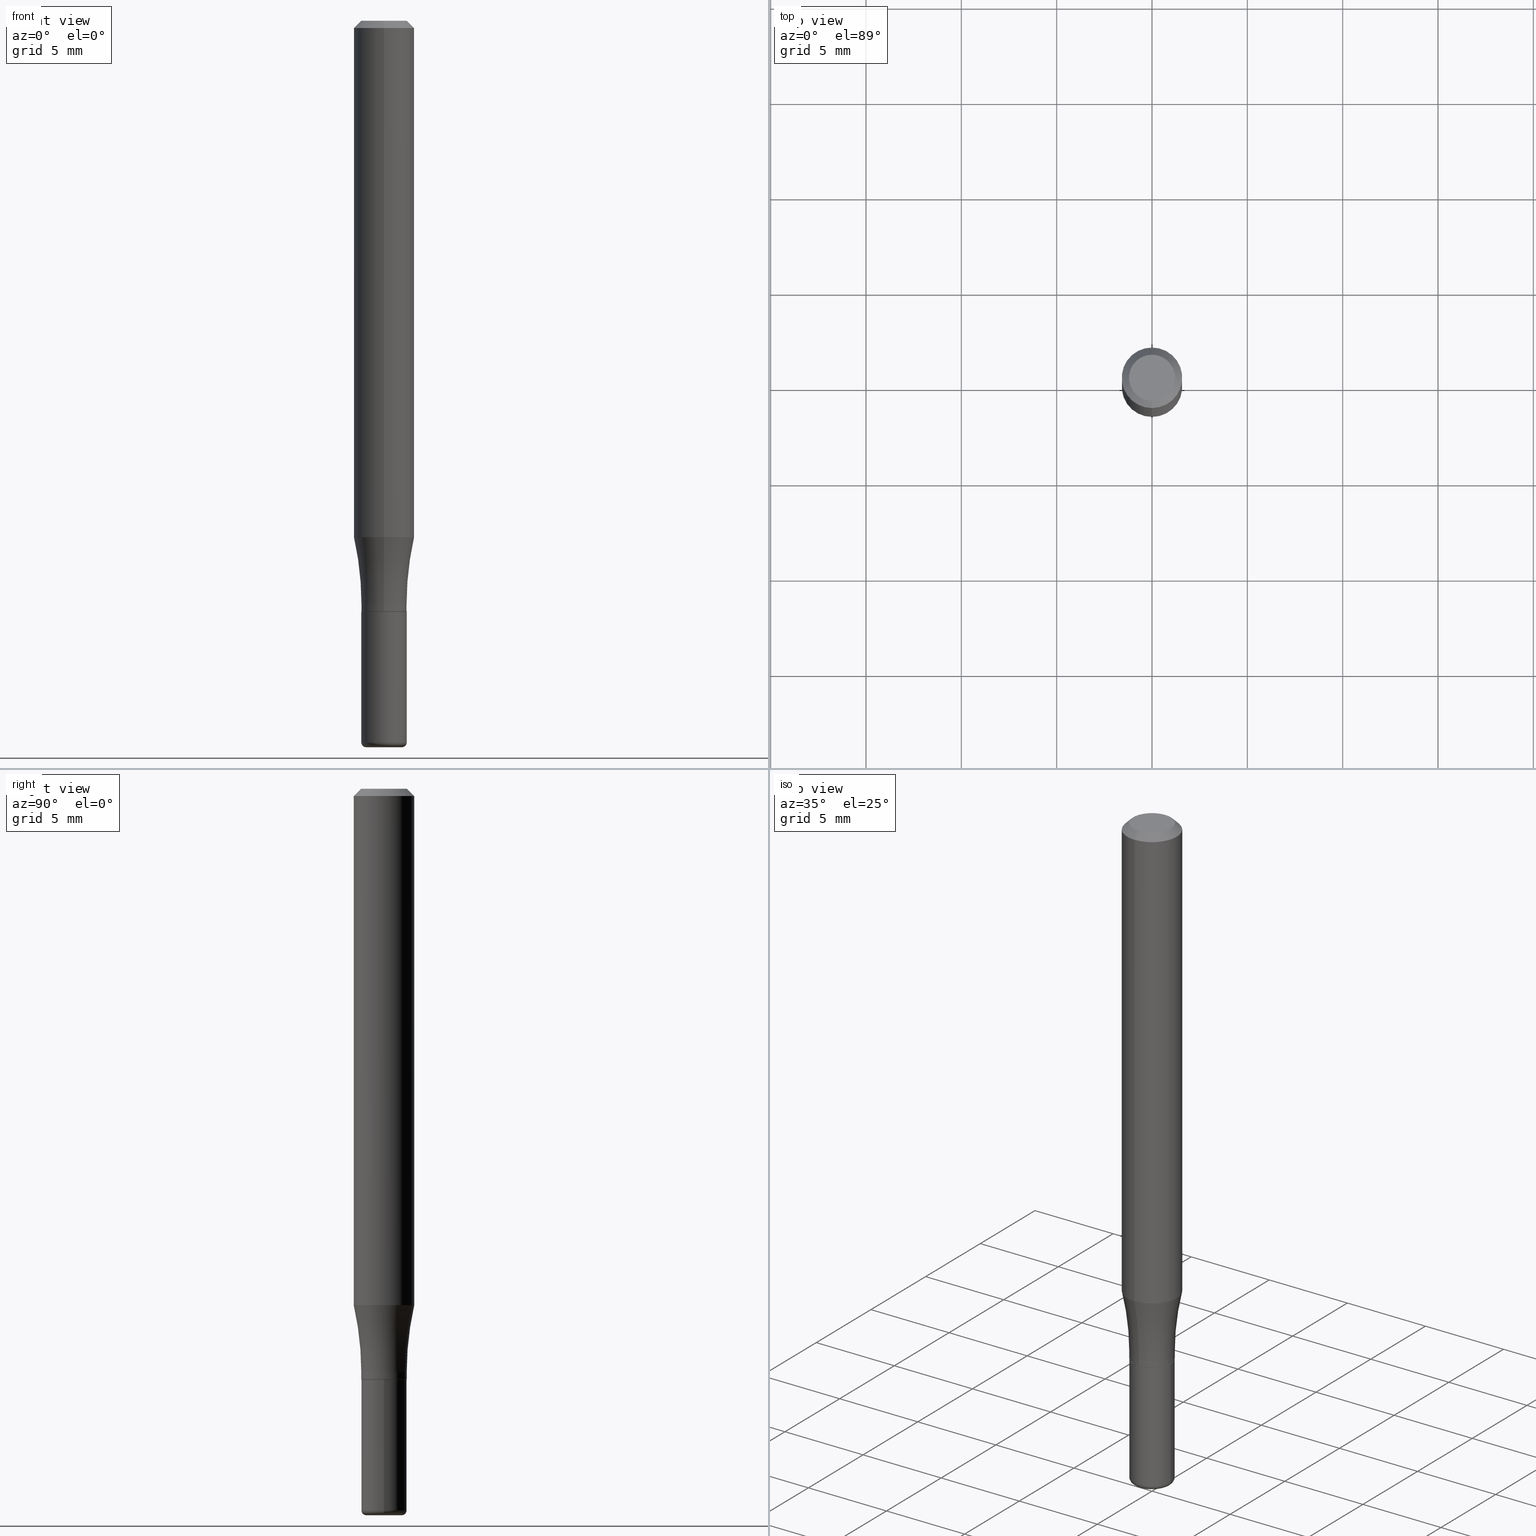
[diagram: canonical four-view strip — front | top / right | iso, engineering-drawing reading convention]
A machine part, canonical four-view strip (front | top / right | iso — engineering-drawing reading convention). The complete STEP part file that produces these views, byte-faithful:
ISO-10303-21;
HEADER;
FILE_DESCRIPTION (( 'STEP AP203' ),
    '1' );
FILE_NAME ('36873.STEP',
    '2024-02-29T19:32:56',
    ( '' ),
    ( '' ),
    'SwSTEP 2.0',
    'SolidWorks 2023',
    '' );
FILE_SCHEMA (( 'CONFIG_CONTROL_DESIGN' ));
ENDSEC;

DATA;
#1 = EDGE_CURVE ( 'NONE', #261, #139, #33, .T. ) ;
#2 = DIRECTION ( 'NONE',  ( -2.446042075129880699E-29, 3.490660385085830172E-15, 1.000000000000000000 ) ) ;
#3 = VERTEX_POINT ( 'NONE', #97 ) ;
#4 = DIRECTION ( 'NONE',  ( 1.000000000000000000, -6.982962677686261189E-15, 0.000000000000000000 ) ) ;
#5 = CIRCLE ( 'NONE', #297, 0.06250000000000001388 ) ;
#6 = FACE_OUTER_BOUND ( 'NONE', #220, .T. ) ;
#7 = ADVANCED_FACE ( 'NONE', ( #64 ), #455, .F. ) ;
#8 = ORIENTED_EDGE ( 'NONE', *, *, #156, .F. ) ;
#9 = DIRECTION ( 'NONE',  ( -2.445468806185136597E-29, 3.491481338843145583E-15, 1.000000000000000000 ) ) ;
#10 = VECTOR ( 'NONE', #333, 39.37007874015748143 ) ;
#11 = CARTESIAN_POINT ( 'NONE',  ( -0.04689999999999999725, -4.397712671060976636E-15, -1.220000000000000195 ) ) ;
#12 = CIRCLE ( 'NONE', #417, 0.04689999999999999725 ) ;
#13 = VECTOR ( 'NONE', #118, 39.37007874015748143 ) ;
#14 = EDGE_CURVE ( 'NONE', #248, #496, #503, .T. ) ;
#15 = PLANE ( 'NONE',  #136 ) ;
#16 = DATE_AND_TIME ( #93, #259 ) ;
#17 = ORIENTED_EDGE ( 'NONE', *, *, #255, .T. ) ;
#18 = CARTESIAN_POINT ( 'NONE',  ( 2.946789911453088792E-29, -4.207235013305989262E-15, -1.204999999999999627 ) ) ;
#19 = EDGE_LOOP ( 'NONE', ( #124, #390, #461, #276 ) ) ;
#20 = APPROVAL_PERSON_ORGANIZATION ( #144, #61, #465 ) ;
#21 = CALENDAR_DATE ( 2024, 29, 2 ) ;
#22 = ORIENTED_EDGE ( 'NONE', *, *, #109, .F. ) ;
#23 = DIRECTION ( 'NONE',  ( -2.446042075129880699E-29, 3.490660385085830172E-15, 1.000000000000000000 ) ) ;
#24 = ORIENTED_EDGE ( 'NONE', *, *, #402, .T. ) ;
#25 = CIRCLE ( 'NONE', #358, 0.04689999999999984459 ) ;
#26 = SECURITY_CLASSIFICATION_LEVEL ( 'unclassified' ) ;
#27 = AXIS2_PLACEMENT_3D ( 'NONE', #38, #312, #70 ) ;
#28 = DIRECTION ( 'NONE',  ( -6.982962677686265133E-15, -1.000000000000000000, 3.490660385085830567E-15 ) ) ;
#29 = EDGE_LOOP ( 'NONE', ( #507, #383, #22, #257 ) ) ;
#30 = EDGE_CURVE ( 'NONE', #299, #377, #25, .T. ) ;
#31 = DIRECTION ( 'NONE',  ( -2.446042075129880699E-29, 3.490660385085830172E-15, 1.000000000000000000 ) ) ;
#32 = EDGE_LOOP ( 'NONE', ( #42, #137, #511, #424 ) ) ;
#33 = LINE ( 'NONE', #222, #235 ) ;
#34 = DIRECTION ( 'NONE',  ( -2.446042075129880699E-29, 3.490660385085830172E-15, 1.000000000000000000 ) ) ;
#35 = ORIENTED_EDGE ( 'NONE', *, *, #370, .T. ) ;
#36 = AXIS2_PLACEMENT_3D ( 'NONE', #445, #364, #197 ) ;
#37 = CYLINDRICAL_SURFACE ( 'NONE', #385, 0.04689999999999990704 ) ;
#38 = CARTESIAN_POINT ( 'NONE',  ( 2.982948310620889037E-29, -4.256860339612169404E-15, -1.219500000000000028 ) ) ;
#39 = ADVANCED_FACE ( 'NONE', ( #506 ), #425, .T. ) ;
#40 = CC_DESIGN_SECURITY_CLASSIFICATION ( #110, ( #212 ) ) ;
#41 = FACE_OUTER_BOUND ( 'NONE', #19, .T. ) ;
#42 = ORIENTED_EDGE ( 'NONE', *, *, #156, .T. ) ;
#43 = PLANE ( 'NONE',  #51 ) ;
#44 = DIRECTION ( 'NONE',  ( -6.982962677686268288E-15, -1.000000000000000000, 0.000000000000000000 ) ) ;
#45 = DIRECTION ( 'NONE',  ( -2.446042075129880699E-29, 3.490660385085830172E-15, 1.000000000000000000 ) ) ;
#46 = AXIS2_PLACEMENT_3D ( 'NONE', #415, #129, #413 ) ;
#47 = FACE_OUTER_BOUND ( 'NONE', #79, .T. ) ;
#48 = DIRECTION ( 'NONE',  ( 1.000000000000000000, -6.982962677686265922E-15, 4.876176775795935793E-29 ) ) ;
#49 = FACE_OUTER_BOUND ( 'NONE', #419, .T. ) ;
#50 = VECTOR ( 'NONE', #54, 39.37007874015748143 ) ;
#51 = AXIS2_PLACEMENT_3D ( 'NONE', #72, #108, #231 ) ;
#52 = CALENDAR_DATE ( 2024, 29, 2 ) ;
#53 = EDGE_CURVE ( 'NONE', #65, #439, #183, .T. ) ;
#54 = DIRECTION ( 'NONE',  ( -2.446042075129880419E-29, 3.490660385085830172E-15, 1.000000000000000000 ) ) ;
#55 = ORIENTED_EDGE ( 'NONE', *, *, #342, .F. ) ;
#56 = DATE_AND_TIME ( #52, #489 ) ;
#57 = CARTESIAN_POINT ( 'NONE',  ( 2.984171331658454391E-29, -4.258605669804712731E-15, -1.220000000000000195 ) ) ;
#58 = ORIENTED_EDGE ( 'NONE', *, *, #30, .F. ) ;
#59 = PERSON_AND_ORGANIZATION_ROLE ( 'design_supplier' ) ;
#60 = CARTESIAN_POINT ( 'NONE',  ( 3.332445430715158596E-16, 0.04689999999999564656, -1.219500000000000028 ) ) ;
#61 = APPROVAL ( #99, 'UNSPECIFIED' ) ;
#62 = VERTEX_POINT ( 'NONE', #60 ) ;
#63 = CIRCLE ( 'NONE', #509, 0.04750000000000000749 ) ;
#64 = FACE_OUTER_BOUND ( 'NONE', #519, .T. ) ;
#65 = VERTEX_POINT ( 'NONE', #430 ) ;
#66 = PERSON_AND_ORGANIZATION ( #172, #513 ) ;
#67 = DIRECTION ( 'NONE',  ( -2.446042075129880138E-29, 3.490660385085830172E-15, 1.000000000000000000 ) ) ;
#68 = ORIENTED_EDGE ( 'NONE', *, *, #402, .F. ) ;
#69 = LOCAL_TIME ( 14, 32, 56.00000000000000000, #254 ) ;
#70 = DIRECTION ( 'NONE',  ( -6.982962677686265922E-15, -1.000000000000000000, 2.912417903693250021E-15 ) ) ;
#71 = CC_DESIGN_PERSON_AND_ORGANIZATION_ASSIGNMENT ( #200, #365, ( #295 ) ) ;
#72 = CARTESIAN_POINT ( 'NONE',  ( 3.275009495835157312E-16, 0.04689999999999574370, -1.220000000000000195 ) ) ;
#73 = DIRECTION ( 'NONE',  ( -2.446042075129880699E-29, 3.490660385085830172E-15, 1.000000000000000000 ) ) ;
#74 = ADVANCED_FACE ( 'NONE', ( #260 ), #346, .F. ) ;
#75 = ORIENTED_EDGE ( 'NONE', *, *, #432, .T. ) ;
#76 = LOCAL_TIME ( 14, 32, 56.00000000000000000, #494 ) ;
#77 = DIRECTION ( 'NONE',  ( -4.937700262163704750E-15, -0.7071067811864243380, 0.7071067811866706965 ) ) ;
#78 = PRODUCT_DEFINITION ( 'UNKNOWN', '', #212, #392 ) ;
#79 = EDGE_LOOP ( 'NONE', ( #431, #149, #58, #367 ) ) ;
#80 = AXIS2_PLACEMENT_3D ( 'NONE', #447, #121, #281 ) ;
#81 = DIRECTION ( 'NONE',  ( -1.000000000000000000, 6.982962677686265922E-15, -4.883557194083112901E-29 ) ) ;
#82 = AXIS2_PLACEMENT_3D ( 'NONE', #319, #440, #406 ) ;
#83 = DIRECTION ( 'NONE',  ( -1.000000000000000000, 7.105427357600962416E-15, 0.000000000000000000 ) ) ;
#84 = DIRECTION ( 'NONE',  ( -6.982962677686266711E-15, -1.000000000000000000, 3.490660385085830172E-15 ) ) ;
#85 = FACE_OUTER_BOUND ( 'NONE', #187, .T. ) ;
#86 = ORIENTED_EDGE ( 'NONE', *, *, #130, .T. ) ;
#87 = ADVANCED_FACE ( 'NONE', ( #210 ), #193, .F. ) ;
#88 = AXIS2_PLACEMENT_3D ( 'NONE', #57, #67, #219 ) ;
#89 = DIRECTION ( 'NONE',  ( 1.000000000000000000, -6.982962677686256455E-15, 0.000000000000000000 ) ) ;
#90 = CONICAL_SURFACE ( 'NONE', #82, 0.04639999999999990660, 0.7853981633972775267 ) ;
#91 = EDGE_CURVE ( 'NONE', #62, #377, #393, .T. ) ;
#92 = DIRECTION ( 'NONE',  ( 0.000000000000000000, 0.000000000000000000, 1.000000000000000000 ) ) ;
#93 = CALENDAR_DATE ( 2024, 29, 2 ) ;
#94 = ORIENTED_EDGE ( 'NONE', *, *, #334, .F. ) ;
#95 = DIRECTION ( 'NONE',  ( -6.982962677686265133E-15, -1.000000000000000000, 2.943801717310634252E-15 ) ) ;
#96 = ORIENTED_EDGE ( 'NONE', *, *, #482, .T. ) ;
#97 = CARTESIAN_POINT ( 'NONE',  ( -3.275009495834553834E-16, -0.04690000000000416752, -1.219499999999999806 ) ) ;
#98 = ORIENTED_EDGE ( 'NONE', *, *, #485, .F. ) ;
#99 = APPROVAL_STATUS ( 'not_yet_approved' ) ;
#100 = CC_DESIGN_PERSON_AND_ORGANIZATION_ASSIGNMENT ( #391, #499, ( #78 ) ) ;
#101 = CARTESIAN_POINT ( 'NONE',  ( 2.984171331658454391E-29, -4.258605669804712731E-15, -1.220000000000000195 ) ) ;
#102 = ORIENTED_EDGE ( 'NONE', *, *, #152, .F. ) ;
#103 = CARTESIAN_POINT ( 'NONE',  ( 3.296918293927156021E-16, 0.04639999999999564612, -1.220000000000000195 ) ) ;
#104 = EDGE_LOOP ( 'NONE', ( #113, #339, #338, #285 ) ) ;
#105 = AXIS2_PLACEMENT_3D ( 'NONE', #517, #116, #433 ) ;
#106 = CARTESIAN_POINT ( 'NONE',  ( -3.240094682446122283E-16, -0.04640000000000416708, -1.219999999999999973 ) ) ;
#107 = ORIENTED_EDGE ( 'NONE', *, *, #123, .F. ) ;
#108 = DIRECTION ( 'NONE',  ( 2.438088387897960049E-29, -3.491481338843145188E-15, -1.000000000000000000 ) ) ;
#109 = EDGE_CURVE ( 'NONE', #139, #439, #12, .T. ) ;
#110 = SECURITY_CLASSIFICATION ( '', '', #26 ) ;
#111 = CARTESIAN_POINT ( 'NONE',  ( 3.669063112694748373E-31, -5.235990577628641967E-17, -0.01499999999999970281 ) ) ;
#112 = CIRCLE ( 'NONE', #438, 0.04689999999999999725 ) ;
#113 = ORIENTED_EDGE ( 'NONE', *, *, #115, .F. ) ;
#114 = CARTESIAN_POINT ( 'NONE',  ( -3.275009495834850642E-16, -0.04689999999999987929, 1.637119720605250144E-16 ) ) ;
#115 = EDGE_CURVE ( 'NONE', #459, #62, #306, .T. ) ;
#116 = DIRECTION ( 'NONE',  ( -2.446042075129880699E-29, 3.490660385085830172E-15, 1.000000000000000000 ) ) ;
#117 = ORIENTED_EDGE ( 'NONE', *, *, #223, .F. ) ;
#118 = DIRECTION ( 'NONE',  ( -2.446042075129880419E-29, 3.490660385085830172E-15, 1.000000000000000000 ) ) ;
#119 = CARTESIAN_POINT ( 'NONE',  ( 3.668203209277704335E-29, -5.237222008264717388E-15, -1.499999999999999778 ) ) ;
#120 = MECHANICAL_CONTEXT ( 'NONE', #429, 'mechanical' ) ;
#121 = DIRECTION ( 'NONE',  ( -2.446042075129880699E-29, 3.490660385085830172E-15, 1.000000000000000000 ) ) ;
#122 = DIRECTION ( 'NONE',  ( 1.000000000000000000, -6.982962677686261189E-15, 0.000000000000000000 ) ) ;
#123 = EDGE_CURVE ( 'NONE', #474, #348, #63, .T. ) ;
#124 = ORIENTED_EDGE ( 'NONE', *, *, #53, .F. ) ;
#125 = CARTESIAN_POINT ( 'NONE',  ( 2.608047609598831020E-29, -3.721852770157700213E-15, -1.066231703908996797 ) ) ;
#126 = AXIS2_PLACEMENT_3D ( 'NONE', #127, #290, #203 ) ;
#127 = CARTESIAN_POINT ( 'NONE',  ( 2.946789911453088792E-29, -4.207235013305989262E-15, -1.204999999999999627 ) ) ;
#128 = EDGE_CURVE ( 'NONE', #348, #474, #359, .T. ) ;
#129 = DIRECTION ( 'NONE',  ( -2.445468806185136597E-29, 3.491481338843145583E-15, 1.000000000000000000 ) ) ;
#130 = EDGE_CURVE ( 'NONE', #377, #299, #426, .T. ) ;
#131 = CARTESIAN_POINT ( 'NONE',  ( 3.625444894818734906E-29, -5.298454348222084962E-15, -1.499999999999999778 ) ) ;
#132 = COORDINATED_UNIVERSAL_TIME_OFFSET ( 5, 0, .BEHIND. ) ;
#133 = APPROVAL_PERSON_ORGANIZATION ( #66, #294, #226 ) ;
#134 = DIRECTION ( 'NONE',  ( -2.446042075129880699E-29, 3.490660385085830172E-15, 1.000000000000000000 ) ) ;
#135 = PERSON_AND_ORGANIZATION ( #172, #513 ) ;
#136 = AXIS2_PLACEMENT_3D ( 'NONE', #131, #166, #48 ) ;
#137 = ORIENTED_EDGE ( 'NONE', *, *, #115, .T. ) ;
#138 = CARTESIAN_POINT ( 'NONE',  ( 2.947480700531505554E-29, -4.206245764028424746E-15, -1.204999999999999849 ) ) ;
#139 = VERTEX_POINT ( 'NONE', #301 ) ;
#140 = DIRECTION ( 'NONE',  ( -2.445468806185136877E-29, 3.491481338843145188E-15, 1.000000000000000000 ) ) ;
#141 = PERSON_AND_ORGANIZATION ( #172, #513 ) ;
#142 = DIRECTION ( 'NONE',  ( 1.000000000000000000, -6.982962677686263555E-15, 0.000000000000000000 ) ) ;
#143 = ORIENTED_EDGE ( 'NONE', *, *, #255, .F. ) ;
#144 = PERSON_AND_ORGANIZATION ( #172, #513 ) ;
#145 = CARTESIAN_POINT ( 'NONE',  ( 3.316907271900976589E-16, 0.04750000000000000749, -2.923346626010003347E-17 ) ) ;
#146 = VERTEX_POINT ( 'NONE', #106 ) ;
#147 = APPLICATION_PROTOCOL_DEFINITION ( 'international standard', 'config_control_design', 1994, #395 ) ;
#148 = DIRECTION ( 'NONE',  ( -2.445468806185136877E-29, 3.491481338843145188E-15, 1.000000000000000000 ) ) ;
#149 = ORIENTED_EDGE ( 'NONE', *, *, #91, .T. ) ;
#150 = AXIS2_PLACEMENT_3D ( 'NONE', #480, #354, #316 ) ;
#151 = DIRECTION ( 'NONE',  ( 2.446042075129880699E-29, -3.490660385085830172E-15, -1.000000000000000000 ) ) ;
#152 = EDGE_CURVE ( 'NONE', #158, #496, #318, .T. ) ;
#153 = ADVANCED_BREP_SHAPE_REPRESENTATION ( '36873', ( #300, #308, #381 ), #314 ) ;
#154 = LINE ( 'NONE', #477, #441 ) ;
#155 = DIRECTION ( 'NONE',  ( 6.982962677686265922E-15, 1.000000000000000000, -3.483106191921935554E-15 ) ) ;
#156 = EDGE_CURVE ( 'NONE', #146, #459, #331, .T. ) ;
#157 = DIRECTION ( 'NONE',  ( -2.445468806185136597E-29, 3.491481338843145583E-15, 1.000000000000000000 ) ) ;
#158 = VERTEX_POINT ( 'NONE', #420 ) ;
#159 = FACE_OUTER_BOUND ( 'NONE', #468, .T. ) ;
#160 = EDGE_CURVE ( 'NONE', #65, #261, #278, .T. ) ;
#161 = CARTESIAN_POINT ( 'NONE',  ( -0.03690000000000000224, -4.940116925380811614E-15, -1.490000000000000213 ) ) ;
#162 = FACE_OUTER_BOUND ( 'NONE', #293, .T. ) ;
#163 = DIRECTION ( 'NONE',  ( -6.982962677686265133E-15, -1.000000000000000000, 3.490660385085829778E-15 ) ) ;
#164 = ADVANCED_FACE ( 'NONE', ( #463 ), #518, .T. ) ;
#165 = DIRECTION ( 'NONE',  ( -6.982962677686265922E-15, -1.000000000000000000, 4.370956789862820361E-15 ) ) ;
#166 = DIRECTION ( 'NONE',  ( -2.438088387897960049E-29, 3.491481338843145188E-15, 1.000000000000000000 ) ) ;
#167 =( CONVERSION_BASED_UNIT ( 'INCH', #170 ) LENGTH_UNIT ( ) NAMED_UNIT ( #373 ) );
#168 = CC_DESIGN_PERSON_AND_ORGANIZATION_ASSIGNMENT ( #135, #173, ( #110 ) ) ;
#169 = AXIS2_PLACEMENT_3D ( 'NONE', #161, #327, #83 ) ;
#170 = LENGTH_MEASURE_WITH_UNIT ( LENGTH_MEASURE( 0.02539999999999999897 ), #408 );
#171 = ORIENTED_EDGE ( 'NONE', *, *, #130, .F. ) ;
#172 = PERSON ( 'UNSPECIFIED', 'UNSPECIFIED', 'UNSPECIFIED', ('UNSPECIFIED'), ('UNSPECIFIED'), ('UNSPECIFIED') ) ;
#173 = PERSON_AND_ORGANIZATION_ROLE ( 'classification_officer' ) ;
#174 = ORIENTED_EDGE ( 'NONE', *, *, #370, .F. ) ;
#175 = DATE_TIME_ROLE ( 'creation_date' ) ;
#176 = DIRECTION ( 'NONE',  ( -6.982962677686265922E-15, -1.000000000000000000, 3.483106191921935554E-15 ) ) ;
#177 = ORIENTED_EDGE ( 'NONE', *, *, #304, .T. ) ;
#178 = ADVANCED_FACE ( 'NONE', ( #361 ), #43, .F. ) ;
#179 = CONICAL_SURFACE ( 'NONE', #236, 0.06250000000000000000, 0.7853981633974488341 ) ;
#180 = SHAPE_DEFINITION_REPRESENTATION ( #209, #153 ) ;
#181 = DIRECTION ( 'NONE',  ( -2.446042075129880419E-29, 3.490660385085830172E-15, 1.000000000000000000 ) ) ;
#182 = ORIENTED_EDGE ( 'NONE', *, *, #152, .T. ) ;
#183 = LINE ( 'NONE', #185, #206 ) ;
#184 = EDGE_LOOP ( 'NONE', ( #24, #192, #94, #412 ) ) ;
#185 = CARTESIAN_POINT ( 'NONE',  ( -0.04689999999999990704, 3.332445430714863267E-16, -2.306980557329546398E-30 ) ) ;
#186 = AXIS2_PLACEMENT_3D ( 'NONE', #111, #73, #238 ) ;
#187 = EDGE_LOOP ( 'NONE', ( #35, #237, #98, #217 ) ) ;
#188 = DIRECTION ( 'NONE',  ( -6.982962677686265133E-15, -1.000000000000000000, 3.490660385085829778E-15 ) ) ;
#189 = CARTESIAN_POINT ( 'NONE',  ( -4.364351673553649961E-16, -0.06250000000000369149, -1.066231703908996575 ) ) ;
#190 = ADVANCED_FACE ( 'NONE', ( #274 ), #404, .T. ) ;
#191 = CARTESIAN_POINT ( 'NONE',  ( 0.000000000000000000, 0.000000000000000000, 0.000000000000000000 ) ) ;
#192 = ORIENTED_EDGE ( 'NONE', *, *, #223, .T. ) ;
#193 = TOROIDAL_SURFACE ( 'NONE', #492, 0.6718999999999998307, 0.6250000000000000000 ) ;
#194 = AXIS2_PLACEMENT_3D ( 'NONE', #350, #520, #512 ) ;
#195 = DIRECTION ( 'NONE',  ( -2.445468806185136597E-29, 3.491481338843145583E-15, 1.000000000000000000 ) ) ;
#196 = EDGE_LOOP ( 'NONE', ( #143, #68, #177, #421 ) ) ;
#197 = DIRECTION ( 'NONE',  ( 6.982962677686265922E-15, 1.000000000000000000, -3.483106191921935554E-15 ) ) ;
#198 = ADVANCED_FACE ( 'NONE', ( #159 ), #179, .T. ) ;
#199 = DIRECTION ( 'NONE',  ( -6.982962677686265922E-15, -1.000000000000000000, 4.370956789862820361E-15 ) ) ;
#200 = PERSON_AND_ORGANIZATION ( #172, #513 ) ;
#201 = ORIENTED_EDGE ( 'NONE', *, *, #473, .T. ) ;
#202 = CYLINDRICAL_SURFACE ( 'NONE', #469, 0.06250000000000001388 ) ;
#203 = DIRECTION ( 'NONE',  ( -6.982962677686265133E-15, -1.000000000000000000, 3.490660385085830567E-15 ) ) ;
#204 = EDGE_CURVE ( 'NONE', #62, #3, #289, .T. ) ;
#205 = CARTESIAN_POINT ( 'NONE',  ( 3.314681862321158048E-16, 0.04639999999999564612, -1.220000000000000195 ) ) ;
#206 = VECTOR ( 'NONE', #148, 39.37007874015748143 ) ;
#207 = AXIS2_PLACEMENT_3D ( 'NONE', #138, #134, #382 ) ;
#208 = COORDINATED_UNIVERSAL_TIME_OFFSET ( 5, 0, .BEHIND. ) ;
#209 = PRODUCT_DEFINITION_SHAPE ( 'NONE', 'NONE',  #78 ) ;
#210 = FACE_OUTER_BOUND ( 'NONE', #196, .T. ) ;
#211 = ORIENTED_EDGE ( 'NONE', *, *, #273, .F. ) ;
#212 = PRODUCT_DEFINITION_FORMATION_WITH_SPECIFIED_SOURCE ( 'ANY', '', #295, .NOT_KNOWN. ) ;
#213 = APPROVAL_DATE_TIME ( #458, #360 ) ;
#214 = ADVANCED_FACE ( 'NONE', ( #41 ), #37, .T. ) ;
#215 = CIRCLE ( 'NONE', #46, 0.04689999999999980990 ) ;
#216 = CARTESIAN_POINT ( 'NONE',  ( -4.364351673553916694E-16, -0.06250000000000001388, 2.181662740678644104E-16 ) ) ;
#217 = ORIENTED_EDGE ( 'NONE', *, *, #374, .F. ) ;
#218 = VECTOR ( 'NONE', #232, 39.37007874015748143 ) ;
#219 = DIRECTION ( 'NONE',  ( -6.982962677686265922E-15, -1.000000000000000000, 3.490660385085830172E-15 ) ) ;
#220 = EDGE_LOOP ( 'NONE', ( #107, #96, #456, #344 ) ) ;
#221 = CIRCLE ( 'NONE', #194, 0.04639999999999990660 ) ;
#222 = CARTESIAN_POINT ( 'NONE',  ( 0.04689999999999990704, -3.275009495834852122E-16, 2.286926907848289134E-30 ) ) ;
#223 = EDGE_CURVE ( 'NONE', #225, #158, #510, .T. ) ;
#224 = CARTESIAN_POINT ( 'NONE',  ( -6.681261293831673262E-45, 9.534592375949691009E-31, 2.731458040629538191E-16 ) ) ;
#225 = VERTEX_POINT ( 'NONE', #514 ) ;
#226 = APPROVAL_ROLE ( '' ) ;
#227 = DIRECTION ( 'NONE',  ( 2.446042075129880138E-29, -3.490660385085830172E-15, -1.000000000000000000 ) ) ;
#228 = ORIENTED_EDGE ( 'NONE', *, *, #14, .T. ) ;
#229 = CARTESIAN_POINT ( 'NONE',  ( -3.275009495834553341E-16, -0.04690000000000405650, -1.204999999999999627 ) ) ;
#230 = AXIS2_PLACEMENT_3D ( 'NONE', #242, #286, #323 ) ;
#231 = DIRECTION ( 'NONE',  ( -1.000000000000000000, 6.982962677686265922E-15, -4.876176775795935793E-29 ) ) ;
#232 = DIRECTION ( 'NONE',  ( 4.937700262164550409E-15, 0.7071067811865454633, -0.7071067811865495711 ) ) ;
#233 = ORIENTED_EDGE ( 'NONE', *, *, #109, .T. ) ;
#234 = DIRECTION ( 'NONE',  ( -2.446042075129880699E-29, 3.490660385085830172E-15, 1.000000000000000000 ) ) ;
#235 = VECTOR ( 'NONE', #140, 39.37007874015748143 ) ;
#236 = AXIS2_PLACEMENT_3D ( 'NONE', #270, #151, #155 ) ;
#237 = ORIENTED_EDGE ( 'NONE', *, *, #342, .T. ) ;
#238 = DIRECTION ( 'NONE',  ( -6.982962677686265922E-15, -1.000000000000000000, 3.483106191921935554E-15 ) ) ;
#239 = ADVANCED_FACE ( 'NONE', ( #322 ), #400, .T. ) ;
#240 = CARTESIAN_POINT ( 'NONE',  ( 3.840629472727447874E-16, 0.04750000000000000749, 1.073394357713768638E-16 ) ) ;
#241 = CARTESIAN_POINT ( 'NONE',  ( -4.287811248607203282E-16, -0.06250000000000005551, -0.01499999999999948597 ) ) ;
#242 = CARTESIAN_POINT ( 'NONE',  ( 0.03690000000000000224, -5.459978517682910710E-15, -1.490000000000000213 ) ) ;
#243 = CARTESIAN_POINT ( 'NONE',  ( -3.773273898774340269E-16, -0.04750000000000000749, 4.389521723545307622E-16 ) ) ;
#244 = AXIS2_PLACEMENT_3D ( 'NONE', #145, #227, #418 ) ;
#245 = AXIS2_PLACEMENT_3D ( 'NONE', #191, #272, #188 ) ;
#246 = EDGE_CURVE ( 'NONE', #3, #62, #311, .T. ) ;
#247 = CARTESIAN_POINT ( 'NONE',  ( -0.03690000000000000224, -4.922047195287021609E-15, -1.499999999999999778 ) ) ;
#248 = VERTEX_POINT ( 'NONE', #189 ) ;
#249 = ADVANCED_FACE ( 'NONE', ( #356 ), #90, .T. ) ;
#250 =( NAMED_UNIT ( * ) PLANE_ANGLE_UNIT ( ) SI_UNIT ( $, .RADIAN. ) );
#251 = DATE_AND_TIME ( #21, #69 ) ;
#252 = DIRECTION ( 'NONE',  ( 5.024295867787204109E-15, 0.7071067811864292230, 0.7071067811866658115 ) ) ;
#253 = ORIENTED_EDGE ( 'NONE', *, *, #315, .T. ) ;
#254 = COORDINATED_UNIVERSAL_TIME_OFFSET ( 5, 0, .BEHIND. ) ;
#255 = EDGE_CURVE ( 'NONE', #225, #377, #375, .T. ) ;
#256 = CARTESIAN_POINT ( 'NONE',  ( 2.984171331658454391E-29, -4.258605669804712731E-15, -1.220000000000000195 ) ) ;
#257 = ORIENTED_EDGE ( 'NONE', *, *, #1, .F. ) ;
#258 = APPROVAL_DATE_TIME ( #380, #294 ) ;
#259 = LOCAL_TIME ( 14, 32, 56.00000000000000000, #384 ) ;
#260 = FACE_OUTER_BOUND ( 'NONE', #428, .T. ) ;
#261 = VERTEX_POINT ( 'NONE', #352 ) ;
#262 = CARTESIAN_POINT ( 'NONE',  ( -6.681261293831673262E-45, 9.534592375949691009E-31, 2.731458040629538191E-16 ) ) ;
#263 = CC_DESIGN_PERSON_AND_ORGANIZATION_ASSIGNMENT ( #141, #296, ( #212 ) ) ;
#264 = VECTOR ( 'NONE', #181, 39.37007874015748143 ) ;
#265 = EDGE_LOOP ( 'NONE', ( #233, #341 ) ) ;
#266 = AXIS2_PLACEMENT_3D ( 'NONE', #224, #389, #472 ) ;
#267 = PERSON_AND_ORGANIZATION ( #172, #513 ) ;
#268 = CARTESIAN_POINT ( 'NONE',  ( 3.669063112694748373E-31, -5.235990577628641967E-17, -0.01499999999999970281 ) ) ;
#269 = ORIENTED_EDGE ( 'NONE', *, *, #473, .F. ) ;
#270 = CARTESIAN_POINT ( 'NONE',  ( 3.669063112694748373E-31, -5.235990577628641967E-17, -0.01499999999999970281 ) ) ;
#271 = ORIENTED_EDGE ( 'NONE', *, *, #128, .F. ) ;
#272 = DIRECTION ( 'NONE',  ( -2.446042075129880699E-29, 3.490660385085830172E-15, 1.000000000000000000 ) ) ;
#273 = EDGE_CURVE ( 'NONE', #459, #146, #221, .T. ) ;
#274 = FACE_OUTER_BOUND ( 'NONE', #29, .T. ) ;
#275 = DIRECTION ( 'NONE',  ( 1.000000000000000000, -6.982962677686265922E-15, 4.876176775795935232E-29 ) ) ;
#276 = ORIENTED_EDGE ( 'NONE', *, *, #462, .F. ) ;
#277 = LINE ( 'NONE', #481, #218 ) ;
#278 = CIRCLE ( 'NONE', #410, 0.04689999999999980990 ) ;
#279 = DIRECTION ( 'NONE',  ( -2.446042075129880699E-29, 3.490660385085830172E-15, 1.000000000000000000 ) ) ;
#280 = CARTESIAN_POINT ( 'NONE',  ( 0.000000000000000000, 0.000000000000000000, 0.000000000000000000 ) ) ;
#281 = DIRECTION ( 'NONE',  ( -6.982962677686266711E-15, -1.000000000000000000, 3.490660385085830172E-15 ) ) ;
#282 = CARTESIAN_POINT ( 'NONE',  ( 3.668203209277704335E-29, -5.237222008264717388E-15, -1.499999999999999778 ) ) ;
#283 = CC_DESIGN_APPROVAL ( #294, ( #110 ) ) ;
#284 = EDGE_CURVE ( 'NONE', #146, #3, #154, .T. ) ;
#285 = ORIENTED_EDGE ( 'NONE', *, *, #204, .F. ) ;
#286 = DIRECTION ( 'NONE',  ( -6.982962677686266711E-15, -1.000000000000000000, 3.491481338843145583E-15 ) ) ;
#287 = DIRECTION ( 'NONE',  ( 1.000000000000000000, -6.982962677686263555E-15, 4.883557194083112340E-29 ) ) ;
#288 = AXIS2_PLACEMENT_3D ( 'NONE', #313, #81, #44 ) ;
#289 = CIRCLE ( 'NONE', #105, 0.04689999999999990704 ) ;
#290 = DIRECTION ( 'NONE',  ( -2.446042075129880699E-29, 3.490660385085830172E-15, 1.000000000000000000 ) ) ;
#291 = APPROVAL_PERSON_ORGANIZATION ( #376, #360, #345 ) ;
#292 = DIRECTION ( 'NONE',  ( -2.446042075129880699E-29, 3.490660385085830172E-15, 1.000000000000000000 ) ) ;
#293 = EDGE_LOOP ( 'NONE', ( #464, #387, #302, #171 ) ) ;
#294 = APPROVAL ( #416, 'UNSPECIFIED' ) ;
#295 = PRODUCT ( '36873', '36873', '', ( #120 ) ) ;
#296 = PERSON_AND_ORGANIZATION_ROLE ( 'creator' ) ;
#297 = AXIS2_PLACEMENT_3D ( 'NONE', #125, #45, #199 ) ;
#298 = DIRECTION ( 'NONE',  ( -2.445468806185136597E-29, 3.491481338843145583E-15, 1.000000000000000000 ) ) ;
#299 = VERTEX_POINT ( 'NONE', #229 ) ;
#300 = MANIFOLD_SOLID_BREP ( 'Body-Move/Copy2[1]', #478 ) ;
#301 = CARTESIAN_POINT ( 'NONE',  ( 0.04689999999999999725, -4.587108182972123426E-15, -1.220000000000000195 ) ) ;
#302 = ORIENTED_EDGE ( 'NONE', *, *, #332, .T. ) ;
#303 = CALENDAR_DATE ( 2024, 29, 2 ) ;
#304 = EDGE_CURVE ( 'NONE', #248, #299, #484, .T. ) ;
#305 = AXIS2_PLACEMENT_3D ( 'NONE', #451, #9, #287 ) ;
#306 = LINE ( 'NONE', #103, #399 ) ;
#307 = ORIENTED_EDGE ( 'NONE', *, *, #482, .F. ) ;
#308 = MANIFOLD_SOLID_BREP ( 'Body-Move/Copy2[2]', #442 ) ;
#309 = DIRECTION ( 'NONE',  ( 1.000000000000000000, -6.982962677686256455E-15, 0.000000000000000000 ) ) ;
#310 = EDGE_LOOP ( 'NONE', ( #117, #75, #228, #102 ) ) ;
#311 = CIRCLE ( 'NONE', #27, 0.04689999999999990704 ) ;
#312 = DIRECTION ( 'NONE',  ( -2.446042075129880699E-29, 3.490660385085830172E-15, 1.000000000000000000 ) ) ;
#313 = CARTESIAN_POINT ( 'NONE',  ( -4.691852623137371831E-15, -0.6719000000000041606, -1.204999999999997407 ) ) ;
#314 =( GEOMETRIC_REPRESENTATION_CONTEXT ( 3 ) GLOBAL_UNCERTAINTY_ASSIGNED_CONTEXT ( ( #321 ) ) GLOBAL_UNIT_ASSIGNED_CONTEXT ( ( #167, #250, #411 ) ) REPRESENTATION_CONTEXT ( 'NONE', 'WORKASPACE' ) );
#315 = EDGE_CURVE ( 'NONE', #348, #158, #277, .T. ) ;
#316 = DIRECTION ( 'NONE',  ( 7.105427357601001859E-15, 1.000000000000000000, 0.000000000000000000 ) ) ;
#317 = AXIS2_PLACEMENT_3D ( 'NONE', #467, #298, #378 ) ;
#318 = CIRCLE ( 'NONE', #443, 0.06250000000000000000 ) ;
#319 = CARTESIAN_POINT ( 'NONE',  ( 2.984171331658454391E-29, -4.258605669804712731E-15, -1.220000000000000195 ) ) ;
#320 = ORIENTED_EDGE ( 'NONE', *, *, #432, .F. ) ;
#321 = UNCERTAINTY_MEASURE_WITH_UNIT (LENGTH_MEASURE( 1.000000000000000082E-05 ), #167, 'distance_accuracy_value', 'NONE');
#322 = FACE_OUTER_BOUND ( 'NONE', #184, .T. ) ;
#323 = DIRECTION ( 'NONE',  ( 1.000000000000000000, -6.982962677686269077E-15, 0.000000000000000000 ) ) ;
#324 = CIRCLE ( 'NONE', #186, 0.06250000000000000000 ) ;
#325 = CYLINDRICAL_SURFACE ( 'NONE', #80, 0.04689999999999987929 ) ;
#326 = FACE_OUTER_BOUND ( 'NONE', #444, .T. ) ;
#327 = DIRECTION ( 'NONE',  ( 7.105427357601001859E-15, 1.000000000000000000, -3.491481338843145583E-15 ) ) ;
#328 = CARTESIAN_POINT ( 'NONE',  ( 2.983471943545866670E-29, -4.259607233388637524E-15, -1.220000000000000195 ) ) ;
#329 = CC_DESIGN_DATE_AND_TIME_ASSIGNMENT ( #16, #175, ( #78 ) ) ;
#330 = CARTESIAN_POINT ( 'NONE',  ( 0.000000000000000000, 0.000000000000000000, 0.000000000000000000 ) ) ;
#331 = CIRCLE ( 'NONE', #471, 0.04639999999999990660 ) ;
#332 = EDGE_CURVE ( 'NONE', #3, #299, #475, .T. ) ;
#333 = DIRECTION ( 'NONE',  ( -4.851104656540966641E-15, -0.7071067811865503483, -0.7071067811865446862 ) ) ;
#334 = EDGE_CURVE ( 'NONE', #496, #158, #324, .T. ) ;
#335 = DIRECTION ( 'NONE',  ( 1.000000000000000000, 0.000000000000000000, 0.000000000000000000 ) ) ;
#336 = CC_DESIGN_APPROVAL ( #61, ( #212 ) ) ;
#337 = CARTESIAN_POINT ( 'NONE',  ( 3.332445430714860801E-16, 0.04689999999999987929, -1.637119720605250144E-16 ) ) ;
#338 = ORIENTED_EDGE ( 'NONE', *, *, #284, .T. ) ;
#339 = ORIENTED_EDGE ( 'NONE', *, *, #273, .T. ) ;
#340 = CARTESIAN_POINT ( 'NONE',  ( 3.643748521215853910E-29, -5.202307194876288105E-15, -1.490000000000000213 ) ) ;
#341 = ORIENTED_EDGE ( 'NONE', *, *, #462, .T. ) ;
#342 = EDGE_CURVE ( 'NONE', #501, #65, #405, .T. ) ;
#343 = CARTESIAN_POINT ( 'NONE',  ( 2.947480700531505554E-29, -4.206245764028424746E-15, -1.204999999999999849 ) ) ;
#344 = ORIENTED_EDGE ( 'NONE', *, *, #315, .F. ) ;
#345 = APPROVAL_ROLE ( '' ) ;
#346 = PLANE ( 'NONE',  #88 ) ;
#347 = ADVANCED_FACE ( 'NONE', ( #6 ), #516, .T. ) ;
#348 = VERTEX_POINT ( 'NONE', #240 ) ;
#349 = DATE_TIME_ROLE ( 'classification_date' ) ;
#350 = CARTESIAN_POINT ( 'NONE',  ( 2.984171331658454391E-29, -4.258605669804712731E-15, -1.220000000000000195 ) ) ;
#351 = ORIENTED_EDGE ( 'NONE', *, *, #160, .F. ) ;
#352 = CARTESIAN_POINT ( 'NONE',  ( 0.04689999999999980990, -5.529808144459772430E-15, -1.490000000000000213 ) ) ;
#353 = ADVANCED_FACE ( 'NONE', ( #47 ), #487, .T. ) ;
#354 = DIRECTION ( 'NONE',  ( 1.000000000000000000, -7.105427357601001070E-15, 4.926305454758171006E-29 ) ) ;
#355 = AXIS2_PLACEMENT_3D ( 'NONE', #282, #371, #122 ) ;
#356 = FACE_OUTER_BOUND ( 'NONE', #104, .T. ) ;
#357 = CIRCLE ( 'NONE', #470, 0.03690000000000000224 ) ;
#358 = AXIS2_PLACEMENT_3D ( 'NONE', #343, #31, #386 ) ;
#359 = CIRCLE ( 'NONE', #266, 0.04750000000000000749 ) ;
#360 = APPROVAL ( #388, 'UNSPECIFIED' ) ;
#361 = FACE_OUTER_BOUND ( 'NONE', #265, .T. ) ;
#362 = CARTESIAN_POINT ( 'NONE',  ( 2.608047609598831020E-29, -3.721852770157700213E-15, -1.066231703908996797 ) ) ;
#363 = TOROIDAL_SURFACE ( 'NONE', #305, 0.03690000000000000224, 0.009999999999999809389 ) ;
#364 = DIRECTION ( 'NONE',  ( 2.446042075129880699E-29, -3.490660385085830172E-15, -1.000000000000000000 ) ) ;
#365 = PERSON_AND_ORGANIZATION_ROLE ( 'design_owner' ) ;
#366 = CIRCLE ( 'NONE', #497, 0.06250000000000001388 ) ;
#367 = ORIENTED_EDGE ( 'NONE', *, *, #332, .F. ) ;
#368 = CARTESIAN_POINT ( 'NONE',  ( 0.03690000000000000224, -5.494893331071340781E-15, -1.499999999999999778 ) ) ;
#369 = APPLICATION_PROTOCOL_DEFINITION ( 'international standard', 'config_control_design', 1994, #429 ) ;
#370 = EDGE_CURVE ( 'NONE', #403, #501, #357, .T. ) ;
#371 = DIRECTION ( 'NONE',  ( -2.445468806185136597E-29, 3.491481338843145583E-15, 1.000000000000000000 ) ) ;
#372 = LOCAL_TIME ( 14, 32, 56.00000000000000000, #208 ) ;
#373 = DIMENSIONAL_EXPONENTS ( 1.000000000000000000, 0.000000000000000000, 0.000000000000000000, 0.000000000000000000, 0.000000000000000000, 0.000000000000000000, 0.000000000000000000 ) ;
#374 = EDGE_CURVE ( 'NONE', #403, #261, #457, .T. ) ;
#375 = CIRCLE ( 'NONE', #150, 0.6250000000000000000 ) ;
#376 = PERSON_AND_ORGANIZATION ( #172, #513 ) ;
#377 = VERTEX_POINT ( 'NONE', #407 ) ;
#378 = DIRECTION ( 'NONE',  ( 1.000000000000000000, -6.982962677686263555E-15, 4.883557194083112340E-29 ) ) ;
#379 = EDGE_LOOP ( 'NONE', ( #55, #201, #504, #351 ) ) ;
#380 = DATE_AND_TIME ( #502, #372 ) ;
#381 = AXIS2_PLACEMENT_3D ( 'NONE', #280, #92, #335 ) ;
#382 = DIRECTION ( 'NONE',  ( -6.982962677686266711E-15, -1.000000000000000000, 2.912417903693253965E-15 ) ) ;
#383 = ORIENTED_EDGE ( 'NONE', *, *, #53, .T. ) ;
#384 = COORDINATED_UNIVERSAL_TIME_OFFSET ( 5, 0, .BEHIND. ) ;
#385 = AXIS2_PLACEMENT_3D ( 'NONE', #476, #157, #275 ) ;
#386 = DIRECTION ( 'NONE',  ( -6.982962677686266711E-15, -1.000000000000000000, 2.912417903693253965E-15 ) ) ;
#387 = ORIENTED_EDGE ( 'NONE', *, *, #204, .T. ) ;
#388 = APPROVAL_STATUS ( 'not_yet_approved' ) ;
#389 = DIRECTION ( 'NONE',  ( -2.446042075129880699E-29, 3.490660385085830172E-15, 1.000000000000000000 ) ) ;
#390 = ORIENTED_EDGE ( 'NONE', *, *, #160, .T. ) ;
#391 = PERSON_AND_ORGANIZATION ( #172, #513 ) ;
#392 = DESIGN_CONTEXT ( 'detailed design', #395, 'design' ) ;
#393 = LINE ( 'NONE', #337, #264 ) ;
#394 = ORIENTED_EDGE ( 'NONE', *, *, #123, .T. ) ;
#395 = APPLICATION_CONTEXT ( 'configuration controlled 3d designs of mechanical parts and assemblies' ) ;
#396 = CC_DESIGN_PERSON_AND_ORGANIZATION_ASSIGNMENT ( #267, #59, ( #212 ) ) ;
#397 = VECTOR ( 'NONE', #436, 39.37007874015748143 ) ;
#398 = CARTESIAN_POINT ( 'NONE',  ( 0.000000000000000000, 0.000000000000000000, 0.000000000000000000 ) ) ;
#399 = VECTOR ( 'NONE', #252, 39.37007874015748143 ) ;
#400 = CYLINDRICAL_SURFACE ( 'NONE', #245, 0.06250000000000001388 ) ;
#401 = DIRECTION ( 'NONE',  ( -6.982962677686265133E-15, -1.000000000000000000, 2.943801717310634252E-15 ) ) ;
#402 = EDGE_CURVE ( 'NONE', #248, #225, #5, .T. ) ;
#403 = VERTEX_POINT ( 'NONE', #368 ) ;
#404 = CYLINDRICAL_SURFACE ( 'NONE', #479, 0.04689999999999990704 ) ;
#405 = CIRCLE ( 'NONE', #169, 0.009999999999999812858 ) ;
#406 = DIRECTION ( 'NONE',  ( -6.982962677686265133E-15, -1.000000000000000000, 2.943801717310634252E-15 ) ) ;
#407 = CARTESIAN_POINT ( 'NONE',  ( 3.886668764608021062E-16, 0.04689999999999563962, -1.205000000000000071 ) ) ;
#408 =( LENGTH_UNIT ( ) NAMED_UNIT ( * ) SI_UNIT ( $, .METRE. ) );
#409 = FACE_OUTER_BOUND ( 'NONE', #310, .T. ) ;
#410 = AXIS2_PLACEMENT_3D ( 'NONE', #340, #500, #142 ) ;
#411 =( NAMED_UNIT ( * ) SI_UNIT ( $, .STERADIAN. ) SOLID_ANGLE_UNIT ( ) );
#412 = ORIENTED_EDGE ( 'NONE', *, *, #14, .F. ) ;
#413 = DIRECTION ( 'NONE',  ( 1.000000000000000000, -6.982962677686263555E-15, 0.000000000000000000 ) ) ;
#414 = PRODUCT_RELATED_PRODUCT_CATEGORY ( 'detail', '', ( #295 ) ) ;
#415 = CARTESIAN_POINT ( 'NONE',  ( 3.643748521215853910E-29, -5.202307194876288105E-15, -1.490000000000000213 ) ) ;
#416 = APPROVAL_STATUS ( 'not_yet_approved' ) ;
#417 = AXIS2_PLACEMENT_3D ( 'NONE', #493, #495, #309 ) ;
#418 = DIRECTION ( 'NONE',  ( 6.982962677686265922E-15, 1.000000000000000000, -3.490660385085830172E-15 ) ) ;
#419 = EDGE_LOOP ( 'NONE', ( #320, #17, #86, #498 ) ) ;
#420 = CARTESIAN_POINT ( 'NONE',  ( 4.364351673553919652E-16, 0.06249999999999995143, -0.01499999999999992138 ) ) ;
#421 = ORIENTED_EDGE ( 'NONE', *, *, #30, .T. ) ;
#422 = CIRCLE ( 'NONE', #355, 0.03690000000000000224 ) ;
#423 = ADVANCED_FACE ( 'NONE', ( #162 ), #325, .T. ) ;
#424 = ORIENTED_EDGE ( 'NONE', *, *, #284, .F. ) ;
#425 = TOROIDAL_SURFACE ( 'NONE', #317, 0.03690000000000000224, 0.009999999999999809389 ) ;
#426 = CIRCLE ( 'NONE', #207, 0.04689999999999984459 ) ;
#427 = DIRECTION ( 'NONE',  ( -6.982962677686265133E-15, -1.000000000000000000, 3.490660385085830172E-15 ) ) ;
#428 = EDGE_LOOP ( 'NONE', ( #8, #211 ) ) ;
#429 = APPLICATION_CONTEXT ( 'configuration controlled 3d designs of mechanical parts and assemblies' ) ;
#430 = CARTESIAN_POINT ( 'NONE',  ( -0.04689999999999980990, -4.397712671060978214E-15, -1.490000000000000213 ) ) ;
#431 = ORIENTED_EDGE ( 'NONE', *, *, #246, .T. ) ;
#432 = EDGE_CURVE ( 'NONE', #225, #248, #366, .T. ) ;
#433 = DIRECTION ( 'NONE',  ( -6.982962677686265922E-15, -1.000000000000000000, 2.912417903693250021E-15 ) ) ;
#434 = DIRECTION ( 'NONE',  ( 1.000000000000000000, -6.982962677686265922E-15, 4.876176775795935232E-29 ) ) ;
#435 = ADVANCED_FACE ( 'NONE', ( #409 ), #202, .T. ) ;
#436 = DIRECTION ( 'NONE',  ( -2.446042075129880419E-29, 3.490660385085830172E-15, 1.000000000000000000 ) ) ;
#437 = CARTESIAN_POINT ( 'NONE',  ( 4.440892098500626162E-16, 0.06250000000000001388, -2.181662740678644104E-16 ) ) ;
#438 = AXIS2_PLACEMENT_3D ( 'NONE', #328, #453, #89 ) ;
#439 = VERTEX_POINT ( 'NONE', #11 ) ;
#440 = DIRECTION ( 'NONE',  ( -2.446042075129880699E-29, 3.490660385085830172E-15, 1.000000000000000000 ) ) ;
#441 = VECTOR ( 'NONE', #77, 39.37007874015748143 ) ;
#442 = CLOSED_SHELL ( 'NONE', ( #239, #347, #164, #353, #490, #87, #423, #249, #74, #7, #198, #435 ) ) ;
#443 = AXIS2_PLACEMENT_3D ( 'NONE', #268, #34, #176 ) ;
#444 = EDGE_LOOP ( 'NONE', ( #174, #269 ) ) ;
#445 = CARTESIAN_POINT ( 'NONE',  ( 3.669063112694748373E-31, -5.235990577628641967E-17, -0.01499999999999970281 ) ) ;
#446 = TOROIDAL_SURFACE ( 'NONE', #126, 0.6718999999999998307, 0.6250000000000000000 ) ;
#447 = CARTESIAN_POINT ( 'NONE',  ( 0.000000000000000000, 0.000000000000000000, 0.000000000000000000 ) ) ;
#448 = DIRECTION ( 'NONE',  ( -2.446042075129880699E-29, 3.490660385085830172E-15, 1.000000000000000000 ) ) ;
#449 = AXIS2_PLACEMENT_3D ( 'NONE', #101, #234, #401 ) ;
#450 = ADVANCED_FACE ( 'NONE', ( #326 ), #15, .F. ) ;
#451 = CARTESIAN_POINT ( 'NONE',  ( 3.643748521215853910E-29, -5.202307194876288105E-15, -1.490000000000000213 ) ) ;
#452 = ORIENTED_EDGE ( 'NONE', *, *, #128, .T. ) ;
#453 = DIRECTION ( 'NONE',  ( -2.445468806185136597E-29, 3.491481338843145583E-15, 1.000000000000000000 ) ) ;
#454 = APPROVAL_DATE_TIME ( #56, #61 ) ;
#455 = PLANE ( 'NONE',  #244 ) ;
#456 = ORIENTED_EDGE ( 'NONE', *, *, #334, .T. ) ;
#457 = CIRCLE ( 'NONE', #230, 0.009999999999999812858 ) ;
#458 = DATE_AND_TIME ( #303, #76 ) ;
#459 = VERTEX_POINT ( 'NONE', #205 ) ;
#460 = DIRECTION ( 'NONE',  ( -2.446042075129880699E-29, 3.490660385085830172E-15, 1.000000000000000000 ) ) ;
#461 = ORIENTED_EDGE ( 'NONE', *, *, #1, .T. ) ;
#462 = EDGE_CURVE ( 'NONE', #439, #139, #112, .T. ) ;
#463 = FACE_OUTER_BOUND ( 'NONE', #32, .T. ) ;
#464 = ORIENTED_EDGE ( 'NONE', *, *, #91, .F. ) ;
#465 = APPROVAL_ROLE ( '' ) ;
#466 = CC_DESIGN_APPROVAL ( #360, ( #78 ) ) ;
#467 = CARTESIAN_POINT ( 'NONE',  ( 3.643748521215853910E-29, -5.202307194876288105E-15, -1.490000000000000213 ) ) ;
#468 = EDGE_LOOP ( 'NONE', ( #307, #271, #253, #182 ) ) ;
#469 = AXIS2_PLACEMENT_3D ( 'NONE', #330, #448, #163 ) ;
#470 = AXIS2_PLACEMENT_3D ( 'NONE', #119, #486, #4 ) ;
#471 = AXIS2_PLACEMENT_3D ( 'NONE', #256, #292, #95 ) ;
#472 = DIRECTION ( 'NONE',  ( -6.982962677686265133E-15, -1.000000000000000000, 3.490660385085830172E-15 ) ) ;
#473 = EDGE_CURVE ( 'NONE', #501, #403, #422, .T. ) ;
#474 = VERTEX_POINT ( 'NONE', #243 ) ;
#475 = LINE ( 'NONE', #114, #397 ) ;
#476 = CARTESIAN_POINT ( 'NONE',  ( 0.000000000000000000, 0.000000000000000000, 0.000000000000000000 ) ) ;
#477 = CARTESIAN_POINT ( 'NONE',  ( -3.240094682446122283E-16, -0.04640000000000416708, -1.219999999999999973 ) ) ;
#478 = CLOSED_SHELL ( 'NONE', ( #515, #190, #178, #214, #39, #450 ) ) ;
#479 = AXIS2_PLACEMENT_3D ( 'NONE', #398, #195, #434 ) ;
#480 = CARTESIAN_POINT ( 'NONE',  ( 4.774136641572140345E-15, 0.6718999999999956119, -1.205000000000002069 ) ) ;
#481 = CARTESIAN_POINT ( 'NONE',  ( 4.364351673553919652E-16, 0.06249999999999995143, -0.01499999999999992138 ) ) ;
#482 = EDGE_CURVE ( 'NONE', #474, #496, #488, .T. ) ;
#483 = CARTESIAN_POINT ( 'NONE',  ( 0.000000000000000000, 0.000000000000000000, 0.000000000000000000 ) ) ;
#484 = CIRCLE ( 'NONE', #288, 0.6250000000000000000 ) ;
#485 = EDGE_CURVE ( 'NONE', #261, #65, #215, .T. ) ;
#486 = DIRECTION ( 'NONE',  ( -2.445468806185136597E-29, 3.491481338843145583E-15, 1.000000000000000000 ) ) ;
#487 = CYLINDRICAL_SURFACE ( 'NONE', #508, 0.04689999999999987929 ) ;
#488 = LINE ( 'NONE', #491, #10 ) ;
#489 = LOCAL_TIME ( 14, 32, 56.00000000000000000, #132 ) ;
#490 = ADVANCED_FACE ( 'NONE', ( #49 ), #446, .F. ) ;
#491 = CARTESIAN_POINT ( 'NONE',  ( -4.287811248607203282E-16, -0.06250000000000005551, -0.01499999999999948597 ) ) ;
#492 = AXIS2_PLACEMENT_3D ( 'NONE', #18, #23, #28 ) ;
#493 = CARTESIAN_POINT ( 'NONE',  ( 2.983471943545866670E-29, -4.259607233388637524E-15, -1.220000000000000195 ) ) ;
#494 = COORDINATED_UNIVERSAL_TIME_OFFSET ( 5, 0, .BEHIND. ) ;
#495 = DIRECTION ( 'NONE',  ( -2.445468806185136597E-29, 3.491481338843145583E-15, 1.000000000000000000 ) ) ;
#496 = VERTEX_POINT ( 'NONE', #241 ) ;
#497 = AXIS2_PLACEMENT_3D ( 'NONE', #362, #2, #165 ) ;
#498 = ORIENTED_EDGE ( 'NONE', *, *, #304, .F. ) ;
#499 = PERSON_AND_ORGANIZATION_ROLE ( 'creator' ) ;
#500 = DIRECTION ( 'NONE',  ( -2.445468806185136597E-29, 3.491481338843145583E-15, 1.000000000000000000 ) ) ;
#501 = VERTEX_POINT ( 'NONE', #247 ) ;
#502 = CALENDAR_DATE ( 2024, 29, 2 ) ;
#503 = LINE ( 'NONE', #216, #50 ) ;
#504 = ORIENTED_EDGE ( 'NONE', *, *, #374, .T. ) ;
#505 = CC_DESIGN_DATE_AND_TIME_ASSIGNMENT ( #251, #349, ( #110 ) ) ;
#506 = FACE_OUTER_BOUND ( 'NONE', #379, .T. ) ;
#507 = ORIENTED_EDGE ( 'NONE', *, *, #485, .T. ) ;
#508 = AXIS2_PLACEMENT_3D ( 'NONE', #483, #279, #84 ) ;
#509 = AXIS2_PLACEMENT_3D ( 'NONE', #262, #460, #427 ) ;
#510 = LINE ( 'NONE', #437, #13 ) ;
#511 = ORIENTED_EDGE ( 'NONE', *, *, #246, .F. ) ;
#512 = DIRECTION ( 'NONE',  ( -6.982962677686265133E-15, -1.000000000000000000, 2.943801717310634252E-15 ) ) ;
#513 = ORGANIZATION ( 'UNSPECIFIED', 'UNSPECIFIED', '' ) ;
#514 = CARTESIAN_POINT ( 'NONE',  ( 4.440892098500884514E-16, 0.06249999999999630851, -1.066231703908997241 ) ) ;
#515 = ADVANCED_FACE ( 'NONE', ( #85 ), #363, .T. ) ;
#516 = CONICAL_SURFACE ( 'NONE', #36, 0.06250000000000000000, 0.7853981633974488341 ) ;
#517 = CARTESIAN_POINT ( 'NONE',  ( 2.982948310620889037E-29, -4.256860339612169404E-15, -1.219500000000000028 ) ) ;
#518 = CONICAL_SURFACE ( 'NONE', #449, 0.04639999999999990660, 0.7853981633972775267 ) ;
#519 = EDGE_LOOP ( 'NONE', ( #452, #394 ) ) ;
#520 = DIRECTION ( 'NONE',  ( -2.446042075129880699E-29, 3.490660385085830172E-15, 1.000000000000000000 ) ) ;
ENDSEC;
END-ISO-10303-21;
